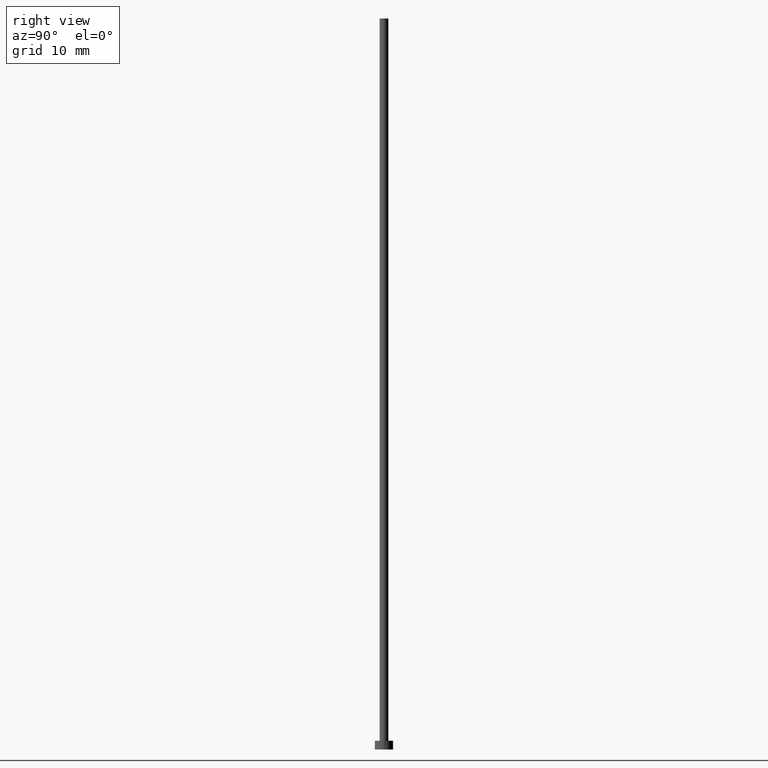
[diagram: clean part render]
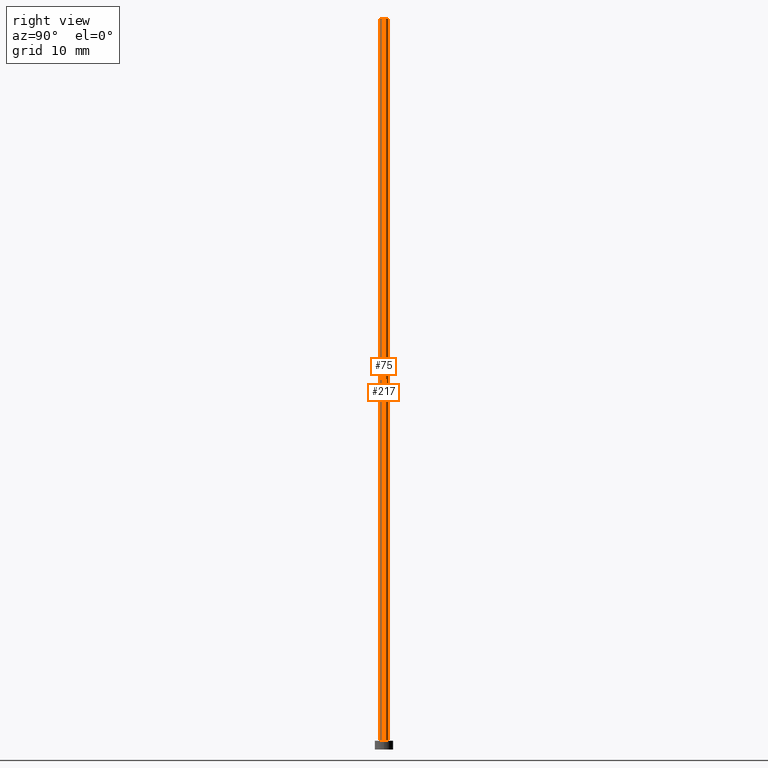
[diagram: same view with one multi-face feature highlighted, each face labeled with its STEP entity id]
A machine part, right view. The highlighted faces form ONE feature: a constant-radius fillet chain: 2 tangent blend faces with common blend radius 0.6 mm. The faces share edges in the B-rep.
Their STEP definitions:
[1] entity #217 (Cylinder):
#3 = AXIS2_PLACEMENT_3D ( 'NONE', #176, #193, #38 ) ;
#4 = CYLINDRICAL_SURFACE ( 'NONE', #241, 0.5999999999999999778 ) ;
#36 = CARTESIAN_POINT ( 'NONE',  ( 0.000000000000000000, 0.000000000000000000, 100.0000000000000000 ) ) ;
#38 = DIRECTION ( 'NONE',  ( 1.000000000000000000, 0.000000000000000000, 0.000000000000000000 ) ) ;
#42 = VERTEX_POINT ( 'NONE', #190 ) ;
#45 = EDGE_CURVE ( 'NONE', #119, #42, #223, .T. ) ;
#50 = DIRECTION ( 'NONE',  ( -0.000000000000000000, -0.000000000000000000, -1.000000000000000000 ) ) ;
#53 = LINE ( 'NONE', #131, #221 ) ;
#63 = EDGE_LOOP ( 'NONE', ( #160, #224, #237, #124 ) ) ;
#70 = FACE_OUTER_BOUND ( 'NONE', #63, .T. ) ;
#76 = DIRECTION ( 'NONE',  ( -1.000000000000000000, 0.000000000000000000, 0.000000000000000000 ) ) ;
#107 = CIRCLE ( 'NONE', #3, 0.5999999999999999778 ) ;
#119 = VERTEX_POINT ( 'NONE', #166 ) ;
#124 = ORIENTED_EDGE ( 'NONE', *, *, #149, .F. ) ;
#128 = AXIS2_PLACEMENT_3D ( 'NONE', #234, #138, #136 ) ;
#131 = CARTESIAN_POINT ( 'NONE',  ( -0.5999999999999999778, 0.000000000000000000, 100.0000000000000000 ) ) ;
#136 = DIRECTION ( 'NONE',  ( 1.000000000000000000, 0.000000000000000000, 0.000000000000000000 ) ) ;
#138 = DIRECTION ( 'NONE',  ( 0.000000000000000000, 0.000000000000000000, 1.000000000000000000 ) ) ;
#148 = CARTESIAN_POINT ( 'NONE',  ( 0.5999999999999999778, 7.347880794884117764E-17, 100.0000000000000000 ) ) ;
#149 = EDGE_CURVE ( 'NONE', #216, #198, #53, .T. ) ;
#156 = CARTESIAN_POINT ( 'NONE',  ( -0.5999999999999999778, 0.000000000000000000, 100.0000000000000000 ) ) ;
#160 = ORIENTED_EDGE ( 'NONE', *, *, #255, .F. ) ;
#163 = VECTOR ( 'NONE', #50, 1000.000000000000000 ) ;
#166 = CARTESIAN_POINT ( 'NONE',  ( 0.5999999999999999778, 7.347880794884117764E-17, 100.0000000000000000 ) ) ;
#176 = CARTESIAN_POINT ( 'NONE',  ( 0.000000000000000000, 0.000000000000000000, 1.199999999999999956 ) ) ;
#190 = CARTESIAN_POINT ( 'NONE',  ( 0.5999999999999999778, 7.347880794884117764E-17, 1.199999999999999956 ) ) ;
#193 = DIRECTION ( 'NONE',  ( 0.000000000000000000, 0.000000000000000000, 1.000000000000000000 ) ) ;
#198 = VERTEX_POINT ( 'NONE', #235 ) ;
#199 = DIRECTION ( 'NONE',  ( -0.000000000000000000, -0.000000000000000000, -1.000000000000000000 ) ) ;
#209 = DIRECTION ( 'NONE',  ( -0.000000000000000000, -0.000000000000000000, -1.000000000000000000 ) ) ;
#214 = EDGE_CURVE ( 'NONE', #42, #198, #107, .T. ) ;
#216 = VERTEX_POINT ( 'NONE', #156 ) ;
#217 = ADVANCED_FACE ( 'NONE', ( #70 ), #4, .T. ) ;
#221 = VECTOR ( 'NONE', #209, 1000.000000000000000 ) ;
#223 = LINE ( 'NONE', #148, #163 ) ;
#224 = ORIENTED_EDGE ( 'NONE', *, *, #45, .T. ) ;
#234 = CARTESIAN_POINT ( 'NONE',  ( 0.000000000000000000, 0.000000000000000000, 100.0000000000000000 ) ) ;
#235 = CARTESIAN_POINT ( 'NONE',  ( -0.5999999999999999778, 0.000000000000000000, 1.199999999999999956 ) ) ;
#237 = ORIENTED_EDGE ( 'NONE', *, *, #214, .T. ) ;
#240 = CIRCLE ( 'NONE', #128, 0.5999999999999999778 ) ;
#241 = AXIS2_PLACEMENT_3D ( 'NONE', #36, #199, #76 ) ;
#255 = EDGE_CURVE ( 'NONE', #119, #216, #240, .T. ) ;
[2] entity #75 (Cylinder):
#7 = ORIENTED_EDGE ( 'NONE', *, *, #133, .T. ) ;
#13 = FACE_OUTER_BOUND ( 'NONE', #196, .T. ) ;
#23 = EDGE_CURVE ( 'NONE', #216, #119, #121, .T. ) ;
#28 = DIRECTION ( 'NONE',  ( 0.000000000000000000, 0.000000000000000000, 1.000000000000000000 ) ) ;
#42 = VERTEX_POINT ( 'NONE', #190 ) ;
#45 = EDGE_CURVE ( 'NONE', #119, #42, #223, .T. ) ;
#50 = DIRECTION ( 'NONE',  ( -0.000000000000000000, -0.000000000000000000, -1.000000000000000000 ) ) ;
#51 = DIRECTION ( 'NONE',  ( -0.000000000000000000, -0.000000000000000000, -1.000000000000000000 ) ) ;
#53 = LINE ( 'NONE', #131, #221 ) ;
#59 = ORIENTED_EDGE ( 'NONE', *, *, #23, .F. ) ;
#61 = CYLINDRICAL_SURFACE ( 'NONE', #126, 0.5999999999999999778 ) ;
#64 = CARTESIAN_POINT ( 'NONE',  ( 0.000000000000000000, 0.000000000000000000, 1.199999999999999956 ) ) ;
#75 = ADVANCED_FACE ( 'NONE', ( #13 ), #61, .T. ) ;
#82 = CARTESIAN_POINT ( 'NONE',  ( 0.000000000000000000, 0.000000000000000000, 100.0000000000000000 ) ) ;
#102 = DIRECTION ( 'NONE',  ( 1.000000000000000000, 0.000000000000000000, 0.000000000000000000 ) ) ;
#108 = CARTESIAN_POINT ( 'NONE',  ( 0.000000000000000000, 0.000000000000000000, 100.0000000000000000 ) ) ;
#119 = VERTEX_POINT ( 'NONE', #166 ) ;
#121 = CIRCLE ( 'NONE', #250, 0.5999999999999999778 ) ;
#126 = AXIS2_PLACEMENT_3D ( 'NONE', #108, #51, #142 ) ;
#131 = CARTESIAN_POINT ( 'NONE',  ( -0.5999999999999999778, 0.000000000000000000, 100.0000000000000000 ) ) ;
#133 = EDGE_CURVE ( 'NONE', #198, #42, #158, .T. ) ;
#141 = ORIENTED_EDGE ( 'NONE', *, *, #45, .F. ) ;
#142 = DIRECTION ( 'NONE',  ( -1.000000000000000000, 0.000000000000000000, 0.000000000000000000 ) ) ;
#146 = AXIS2_PLACEMENT_3D ( 'NONE', #64, #202, #102 ) ;
#148 = CARTESIAN_POINT ( 'NONE',  ( 0.5999999999999999778, 7.347880794884117764E-17, 100.0000000000000000 ) ) ;
#149 = EDGE_CURVE ( 'NONE', #216, #198, #53, .T. ) ;
#156 = CARTESIAN_POINT ( 'NONE',  ( -0.5999999999999999778, 0.000000000000000000, 100.0000000000000000 ) ) ;
#158 = CIRCLE ( 'NONE', #146, 0.5999999999999999778 ) ;
#163 = VECTOR ( 'NONE', #50, 1000.000000000000000 ) ;
#166 = CARTESIAN_POINT ( 'NONE',  ( 0.5999999999999999778, 7.347880794884117764E-17, 100.0000000000000000 ) ) ;
#178 = ORIENTED_EDGE ( 'NONE', *, *, #149, .T. ) ;
#188 = DIRECTION ( 'NONE',  ( 1.000000000000000000, 0.000000000000000000, 0.000000000000000000 ) ) ;
#190 = CARTESIAN_POINT ( 'NONE',  ( 0.5999999999999999778, 7.347880794884117764E-17, 1.199999999999999956 ) ) ;
#196 = EDGE_LOOP ( 'NONE', ( #141, #59, #178, #7 ) ) ;
#198 = VERTEX_POINT ( 'NONE', #235 ) ;
#202 = DIRECTION ( 'NONE',  ( 0.000000000000000000, 0.000000000000000000, 1.000000000000000000 ) ) ;
#209 = DIRECTION ( 'NONE',  ( -0.000000000000000000, -0.000000000000000000, -1.000000000000000000 ) ) ;
#216 = VERTEX_POINT ( 'NONE', #156 ) ;
#221 = VECTOR ( 'NONE', #209, 1000.000000000000000 ) ;
#223 = LINE ( 'NONE', #148, #163 ) ;
#235 = CARTESIAN_POINT ( 'NONE',  ( -0.5999999999999999778, 0.000000000000000000, 1.199999999999999956 ) ) ;
#250 = AXIS2_PLACEMENT_3D ( 'NONE', #82, #28, #188 ) ;